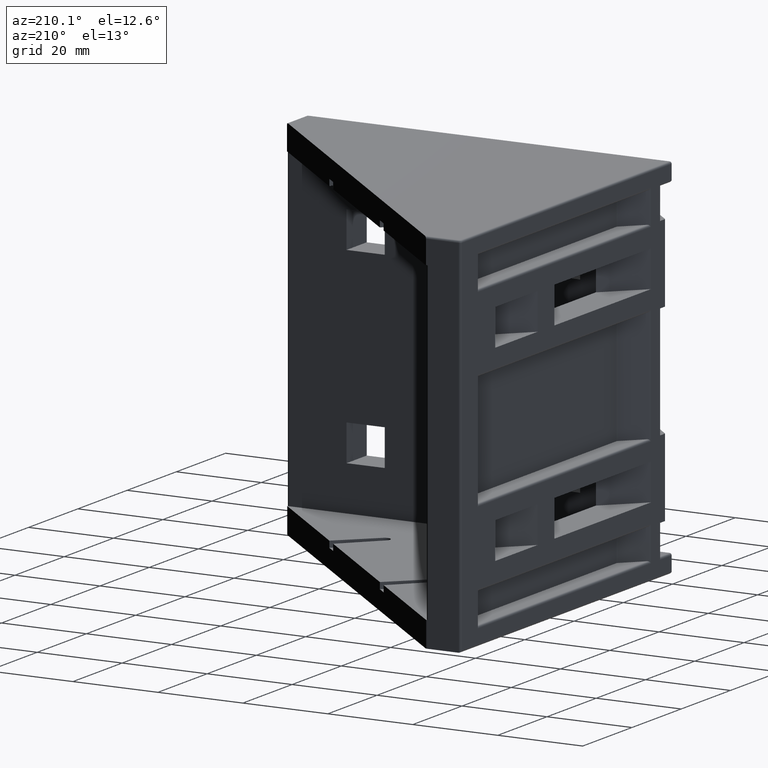
[diagram: clean part render]
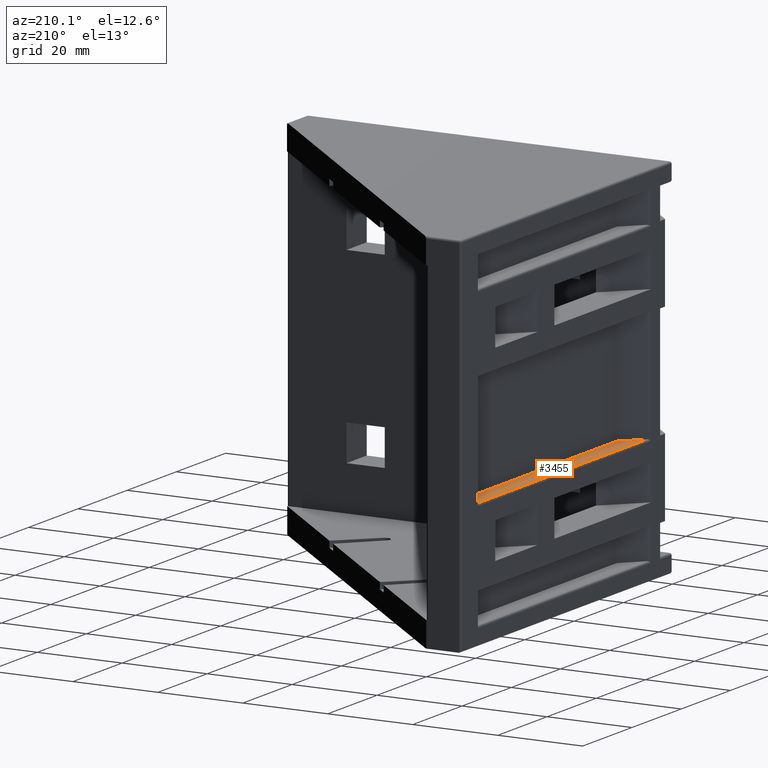
[diagram: same view with one face highlighted and labeled with its STEP entity id]
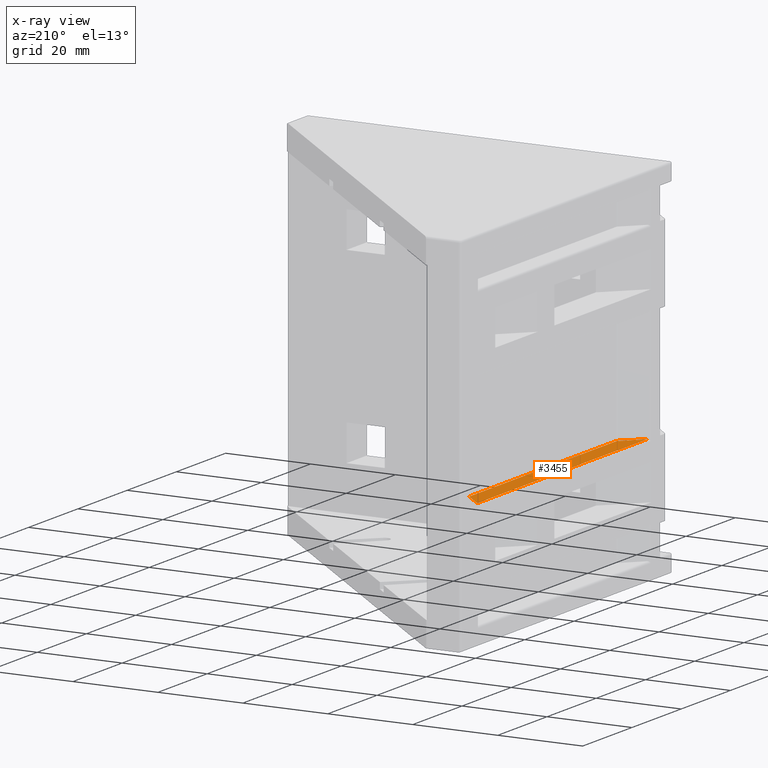
[diagram: x-ray of the same camera — body ghosted, the highlighted face saturated]
A machine part, auxiliary view. The second image highlights one B-rep face of the part: STEP entity #3455.
The next image is the same camera in x-ray: the body ghosted, the highlighted face saturated — about 0% of this face is hidden behind the body in this view.
In plain terms, the highlighted planar face has unit normal (0, 0, -1).
Its self-contained STEP definition (entity closure, byte-faithful):
#144=CIRCLE('',#3708,0.5);
#146=CIRCLE('',#3711,0.5);
#319=FACE_OUTER_BOUND('',#515,.T.);
#515=EDGE_LOOP('',(#2466,#2467,#2468,#2469,#2470,#2471));
#778=LINE('',#5302,#1143);
#779=LINE('',#5304,#1144);
#780=LINE('',#5306,#1145);
#781=LINE('',#5309,#1146);
#1143=VECTOR('',#4235,10.);
#1144=VECTOR('',#4236,10.);
#1145=VECTOR('',#4237,10.);
#1146=VECTOR('',#4240,10.);
#1505=VERTEX_POINT('',#5292);
#1506=VERTEX_POINT('',#5293);
#1509=VERTEX_POINT('',#5301);
#1510=VERTEX_POINT('',#5303);
#1511=VERTEX_POINT('',#5305);
#1512=VERTEX_POINT('',#5307);
#1875=EDGE_CURVE('',#1505,#1506,#144,.T.);
#1879=EDGE_CURVE('',#1509,#1506,#778,.T.);
#1880=EDGE_CURVE('',#1510,#1509,#779,.T.);
#1881=EDGE_CURVE('',#1511,#1510,#780,.T.);
#1882=EDGE_CURVE('',#1511,#1512,#146,.T.);
#1883=EDGE_CURVE('',#1505,#1512,#781,.T.);
#2466=ORIENTED_EDGE('',*,*,#1875,.T.);
#2467=ORIENTED_EDGE('',*,*,#1879,.F.);
#2468=ORIENTED_EDGE('',*,*,#1880,.F.);
#2469=ORIENTED_EDGE('',*,*,#1881,.F.);
#2470=ORIENTED_EDGE('',*,*,#1882,.T.);
#2471=ORIENTED_EDGE('',*,*,#1883,.F.);
#3329=PLANE('',#3710);
#3455=ADVANCED_FACE('',(#319),#3329,.F.);
#3708=AXIS2_PLACEMENT_3D('',#5294,#4227,#4228);
#3710=AXIS2_PLACEMENT_3D('',#5300,#4233,#4234);
#3711=AXIS2_PLACEMENT_3D('',#5308,#4238,#4239);
#4227=DIRECTION('center_axis',(0.,0.,1.));
#4228=DIRECTION('ref_axis',(0.923879532511287,0.382683432365089,0.));
#4233=DIRECTION('center_axis',(0.,0.,-1.));
#4234=DIRECTION('ref_axis',(-1.,0.,0.));
#4235=DIRECTION('',(0.707106781186547,-0.707106781186548,0.));
#4236=DIRECTION('',(0.,1.,0.));
#4237=DIRECTION('',(-0.707106781186548,-0.707106781186547,0.));
#4238=DIRECTION('center_axis',(0.,0.,1.));
#4239=DIRECTION('ref_axis',(0.923879532511287,-0.38268343236509,0.));
#4240=DIRECTION('',(2.59052039079203E-16,-1.,0.));
#5292=CARTESIAN_POINT('',(5.,73.7928932188134,-13.25));
#5293=CARTESIAN_POINT('',(4.85355339059328,74.1464466094067,-13.25));
#5294=CARTESIAN_POINT('Origin',(4.5,73.7928932188134,-13.25));
#5300=CARTESIAN_POINT('Origin',(2.32656008326906,44.,-13.25));
#5301=CARTESIAN_POINT('',(0.5,78.5,-13.25));
#5302=CARTESIAN_POINT('',(0.,79.,-13.25));
#5303=CARTESIAN_POINT('',(0.5,9.5,-13.25));
#5304=CARTESIAN_POINT('',(0.5,65.,-13.25));
#5305=CARTESIAN_POINT('',(4.85355339059329,13.8535533905933,-13.25));
#5306=CARTESIAN_POINT('',(5.00000000000002,14.,-13.25));
#5307=CARTESIAN_POINT('',(5.00000000000002,14.2071067811866,-13.25));
#5308=CARTESIAN_POINT('Origin',(4.50000000000002,14.2071067811866,-13.25));
#5309=CARTESIAN_POINT('',(5.,74.,-13.25));